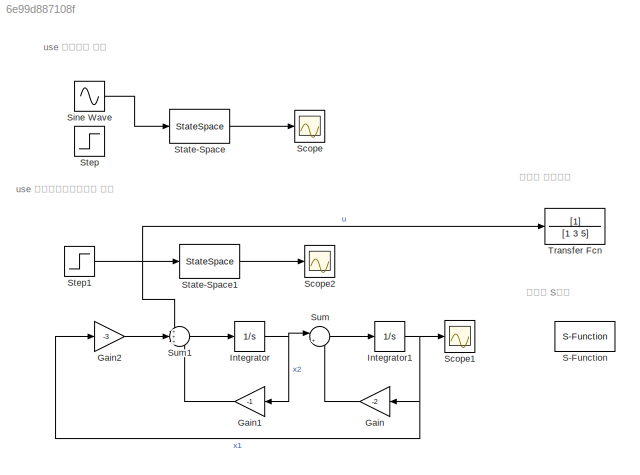
MODEL slx_6e99d887108f
KIND model
CONFIG AbsTol = auto
CONFIG EnableMultiTasking = off
CONFIG FixedStep = auto
CONFIG MaxStep = auto
CONFIG MinStep = auto
CONFIG RelTol = 1e-3
CONFIG SampleTimeConstraint = Unconstrained
CONFIG SolverName = VariableStepAuto
CONFIG StartTime = 0.0
CONFIG StopTime = 20
BLOCK [Gain] Gain
  Gain = -2
  NameLocation = top
BLOCK [Gain] Gain1
  Gain = -1
  NameLocation = top
BLOCK [Gain] Gain2
  Gain = -3
BLOCK [Integrator] Integrator
  InitialCondition = 1
BLOCK [Integrator] Integrator1
  InitialCondition = 2
BLOCK [S-Function] S-Function
  EnableBusSupport = off
  SFcnIsStateOwnerBlock = off
  SFunctionDeploymentMode = off
BLOCK [Scope] Scope
  Floating = off
  NumInputPorts = 1
  ScopeSpecificationString = Simulink.scopes.TimeScopeBlockCfg('CurrentConfiguration', extmgr.ConfigurationSet(extmgr.Configuration('Core','General UI',true,'FigureColor',[1 1 1]),extmgr.Configuration('Core','Source UI',true),extmgr.Configuration('Sources','WiredSimulink',true),extmgr.Configuration('Visuals','Time Domain',true,'SerializedDisplays',{struct('MinYLimReal','-0.34975','MaxYLimReal','1.14997','YLabelReal','','MinYL...<+1461ch>
BLOCK [Scope] Scope1
  Floating = off
  NumInputPorts = 1
  ScopeSpecificationString = Simulink.scopes.TimeScopeBlockCfg('CurrentConfiguration', extmgr.ConfigurationSet(extmgr.Configuration('Core','General UI',true,'FigureColor',[1 1 1]),extmgr.Configuration('Core','Source UI',true),extmgr.Configuration('Sources','WiredSimulink',true,'DataLoggingVariableName','ScopeData1'),extmgr.Configuration('Visuals','Time Domain',true,'SerializedDisplays',{struct('MinYLimReal','-0.34949','MaxYLi...<+1500ch>
BLOCK [Scope] Scope2
  Floating = off
  NumInputPorts = 1
  ScopeSpecificationString = Simulink.scopes.TimeScopeBlockCfg('CurrentConfiguration', extmgr.ConfigurationSet(extmgr.Configuration('Core','General UI',true,'FigureColor',[1 1 1]),extmgr.Configuration('Core','Source UI',true),extmgr.Configuration('Sources','WiredSimulink',true,'DataLoggingVariableName','ScopeData2'),extmgr.Configuration('Visuals','Time Domain',true,'SerializedDisplays',{struct('MinYLimReal','-0.34949','MaxYLi...<+1500ch>
BLOCK [Sin] Sine Wave
  SampleTime = 0
BLOCK [StateSpace] State-Space
  A = [-2, 1;-3,-1]
  B = [0;1]
  C = [1,0]
  D = 0
  InitialCondition = [1,2]
BLOCK [StateSpace] State-Space1
  A = [-2, 1;-3,-1]
  B = [0;1]
  C = [1,0]
  D = 0
  InitialCondition = [1,2]
BLOCK [Step] Step
  SampleTime = 0
BLOCK [Step] Step1
  SampleTime = 0
BLOCK [Sum] Sum
  Inputs = |++
BLOCK [Sum] Sum1
  Inputs = +++
BLOCK [TransferFcn] Transfer Fcn
  Denominator = [1 3 5]
ANNOTATION (root): use 狀態空間 建模
ANNOTATION (root): use 積分符號微分方程組 建模
ANNOTATION (root): 可加入 S函數
ANNOTATION (root): 可加入 傳遞函數
LINE Gain1:1 -> Sum1:3
LINE Gain2:1 -> Sum1:2
LINE Gain:1 -> Sum:2
NET Integrator1:1 -> Gain2:1, Gain:1, Scope1:1
NET Integrator:1 -> Gain1:1, Sum:1
LINE Sine Wave:1 -> State-Space:1
LINE State-Space1:1 -> Scope2:1
LINE State-Space:1 -> Scope:1
NET Step1:1 -> State-Space1:1, Sum1:1, Transfer Fcn:1
LINE Sum1:1 -> Integrator:1
LINE Sum:1 -> Integrator1:1
note: NET lines group one-source signal fan-out (src -> all destinations, sorted); 1:1 wires keep LINE
